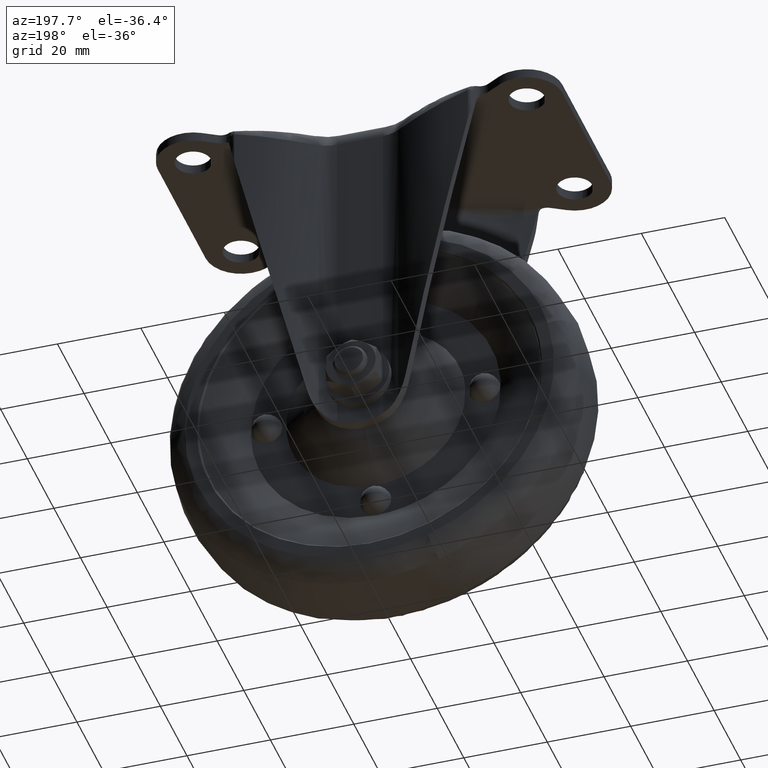
[diagram: clean part render]
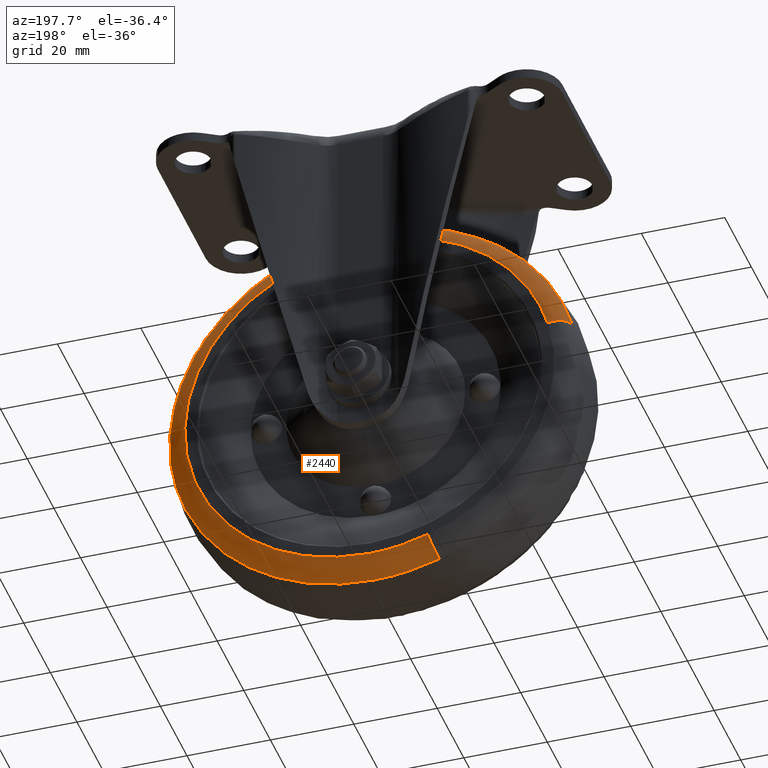
[diagram: same view with one face highlighted and labeled with its STEP entity id]
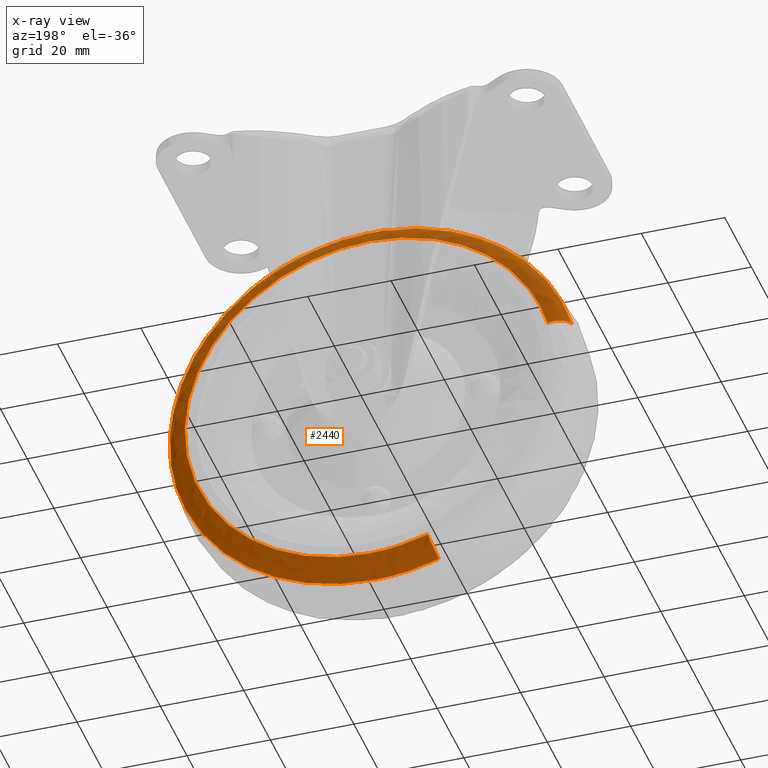
[diagram: x-ray of the same camera — body ghosted, the highlighted face saturated]
A machine part, auxiliary view. The second image highlights one B-rep face of the part: STEP entity #2440.
The next image is the same camera in x-ray: the body ghosted, the highlighted face saturated — about 0% of this face is hidden behind the body in this view.
In plain terms, the highlighted face is a freeform B-spline surface patch.
Its self-contained STEP definition (entity closure, byte-faithful):
#2264=CARTESIAN_POINT('',(-13.876293729737439,10.990696350129985,-114.716927893697330));
#2265=CARTESIAN_POINT('',(-12.682374328333411,10.990696350129982,-115.114061075357580));
#2266=CARTESIAN_POINT('',(-11.467696216568225,10.990696350129985,-115.442261297513370));
#2267=CARTESIAN_POINT('',(30.974565080945140,10.990696350129982,-126.909957514081570));
#2268=CARTESIAN_POINT('',(42.442261297513362,10.990696350129985,-84.467696216568228));
#2269=CARTESIAN_POINT('',(53.909957514081583,10.990696350129982,-42.025434919054874));
#2270=CARTESIAN_POINT('',(11.467696216568235,10.990696350129985,-30.557738702486649));
#2271=CARTESIAN_POINT('',(-30.974565080945123,10.990696350129982,-19.090042485918421));
#2272=CARTESIAN_POINT('',(-42.442261297513362,10.990696350129985,-61.532303783431779));
#2273=CARTESIAN_POINT('',(-15.272216723460616,11.260882218202976,-118.913554169307700));
#2274=CARTESIAN_POINT('',(-13.958191796940724,11.260882218202976,-119.350638028767610));
#2275=CARTESIAN_POINT('',(-12.621319881901433,11.260882218202980,-119.711854432735040));
#2276=CARTESIAN_POINT('',(34.090534550833588,11.260882218202978,-132.333174314636470));
#2277=CARTESIAN_POINT('',(46.711854432735031,11.260882218202980,-85.621319881901428));
#2278=CARTESIAN_POINT('',(59.333174314636452,11.260882218202978,-38.909465449166426));
#2279=CARTESIAN_POINT('',(12.621319881901439,11.260882218202980,-26.288145567264991));
#2280=CARTESIAN_POINT('',(-34.090534550833588,11.260882218202978,-13.666825685363547));
#2281=CARTESIAN_POINT('',(-46.711854432735009,11.260882218202980,-60.378680118098572));
#2282=CARTESIAN_POINT('',(-15.524722400422903,6.902757344517541,-119.672673378207950));
#2283=CARTESIAN_POINT('',(-14.188971829248780,6.902757344517540,-120.116983834685190));
#2284=CARTESIAN_POINT('',(-12.829996525157902,6.902757344517538,-120.484172468765910));
#2285=CARTESIAN_POINT('',(34.654175943608017,6.902757344517540,-133.314168993923800));
#2286=CARTESIAN_POINT('',(47.484172468765919,6.902757344517538,-85.829996525157895));
#2287=CARTESIAN_POINT('',(60.314168993923815,6.902757344517540,-38.345824056391983));
#2288=CARTESIAN_POINT('',(12.829996525157902,6.902757344517538,-25.515827531234084));
#2289=CARTESIAN_POINT('',(-34.654175943608017,6.902757344517540,-12.685831006076183));
#2290=CARTESIAN_POINT('',(-47.484172468765919,6.902757344517538,-60.170003474842098));
#2298=(BOUNDED_SURFACE()B_SPLINE_SURFACE(2,2,((#2264,#2273,#2282),(#2265,#2274,#2283),(#2266,#2275,#2284),(#2267,#2276,#2285),(#2268,#2277,#2286),(#2269,#2278,#2287),(#2270,#2279,#2288),(#2271,#2280,#2289),(#2272,#2281,#2290)),.UNSPECIFIED.,.F.,.F.,.U.)B_SPLINE_SURFACE_WITH_KNOTS((3,2,2,2,3),(3,3),(0.0,3.259820769074377,84.755417716191516,166.251014663308610,247.746611610425790),(0.0,7.586699950940904),.UNSPECIFIED.)GEOMETRIC_REPRESENTATION_ITEM()RATIONAL_B_SPLINE_SURFACE(((0.894125677647887,0.670287674355030,0.897103665306754),(0.903984748146526,0.677678596684002,0.906995572565378),(0.914701128234617,0.685712207244932,0.917747644780927),(0.646791370533683,0.484871751685287,0.648945583042576),(0.914701128234617,0.685712207244932,0.917747644780927),(0.646791370533683,0.484871751685287,0.648945583042576),(0.914701128234617,0.685712207244932,0.917747644780927),(0.646791370533683,0.484871751685287,0.648945583042576),(0.914701128234617,0.685712207244932,0.917747644780927)))REPRESENTATION_ITEM('')SURFACE());
#2299=CARTESIAN_POINT('',(-13.972526002667140,11.000000502495240,-115.006227576638910));
#2300=VERTEX_POINT('',#2299);
#2301=CARTESIAN_POINT('',(0.0,11.000000502495240,-117.269116074793700));
#2302=VERTEX_POINT('',#2301);
#2303=CARTESIAN_POINT('',(-13.972526002667138,11.000000502495240,-115.006227576638990));
#2304=CARTESIAN_POINT('',(-7.169503467468189,11.000000502495244,-117.269116074793700));
#2305=CARTESIAN_POINT('',(0.0,11.000000502495240,-117.269116074793700));
#2313=(BOUNDED_CURVE()B_SPLINE_CURVE(2,(#2303,#2304,#2305),.UNSPECIFIED.,.F.,.U.)B_SPLINE_CURVE_WITH_KNOTS((3,3),(0.946340696667623,1.0),.UNSPECIFIED.)CURVE()GEOMETRIC_REPRESENTATION_ITEM()RATIONAL_B_SPLINE_CURVE((0.901255104928769,0.937134215710770,1.0))REPRESENTATION_ITEM(''));
#2314=EDGE_CURVE('',#2300,#2302,#2313,.T.);
#2315=ORIENTED_EDGE('',*,*,#2314,.T.);
#2316=CARTESIAN_POINT('',(0.0,11.000000502495240,-28.730883925206250));
#2317=VERTEX_POINT('',#2316);
#2318=CARTESIAN_POINT('',(0.0,11.000000502495240,-117.269116074793700));
#2319=CARTESIAN_POINT('',(44.269116074793750,11.000000502495242,-117.269116074793740));
#2320=CARTESIAN_POINT('',(44.269116074793743,11.000000502495240,-73.0));
#2321=CARTESIAN_POINT('',(44.269116074793750,11.000000502495242,-28.730883925206246));
#2322=CARTESIAN_POINT('',(0.0,11.000000502495240,-28.730883925206250));
#2330=(BOUNDED_CURVE()B_SPLINE_CURVE(2,(#2318,#2319,#2320,#2321,#2322),.UNSPECIFIED.,.F.,.U.)B_SPLINE_CURVE_WITH_KNOTS((3,2,3),(0.0,0.250000000000000,0.500000000000000),.UNSPECIFIED.)CURVE()GEOMETRIC_REPRESENTATION_ITEM()RATIONAL_B_SPLINE_CURVE((1.0,0.707106781186548,1.0,0.707106781186548,1.0))REPRESENTATION_ITEM(''));
#2331=EDGE_CURVE('',#2302,#2317,#2330,.T.);
#2332=ORIENTED_EDGE('',*,*,#2331,.T.);
#2333=CARTESIAN_POINT('',(-42.736591828179542,11.000000502495240,-61.452777080198601));
#2334=VERTEX_POINT('',#2333);
#2335=CARTESIAN_POINT('',(0.0,11.000000502495240,-28.730883925206250));
#2336=CARTESIAN_POINT('',(-33.895292637910828,11.000000502495240,-28.730883925206250));
#2337=CARTESIAN_POINT('',(-42.736591828179549,11.000000502495245,-61.452777080198601));
#2345=(BOUNDED_CURVE()B_SPLINE_CURVE(2,(#2335,#2336,#2337),.UNSPECIFIED.,.F.,.U.)B_SPLINE_CURVE_WITH_KNOTS((3,3),(0.500000000000000,0.705522207669901),.UNSPECIFIED.)CURVE()GEOMETRIC_REPRESENTATION_ITEM()RATIONAL_B_SPLINE_CURVE((1.0,0.759215756231663,0.914323587274497))REPRESENTATION_ITEM(''));
#2346=EDGE_CURVE('',#2317,#2334,#2345,.T.);
#2347=ORIENTED_EDGE('',*,*,#2346,.T.);
#2348=CARTESIAN_POINT('',(-47.422423129892202,7.200003991381710,-60.186687851168323));
#2349=VERTEX_POINT('',#2348);
#2350=CARTESIAN_POINT('',(-42.736591828179542,11.000000502495240,-61.452777080198594));
#2351=CARTESIAN_POINT('',(-46.515485588908668,11.000000498879672,-60.431738041464492));
#2352=CARTESIAN_POINT('',(-47.422423129892195,7.200003991381710,-60.186687851168323));
#2360=(BOUNDED_CURVE()B_SPLINE_CURVE(2,(#2350,#2351,#2352),.UNSPECIFIED.,.F.,.U.)B_SPLINE_CURVE_WITH_KNOTS((3,3),(-1.686821146499185,-0.303121844745668),.UNSPECIFIED.)CURVE()GEOMETRIC_REPRESENTATION_ITEM()RATIONAL_B_SPLINE_CURVE((0.894853527352496,0.705698180846239,0.897623297889692))REPRESENTATION_ITEM(''));
#2361=EDGE_CURVE('',#2334,#2349,#2360,.T.);
#2362=ORIENTED_EDGE('',*,*,#2361,.T.);
#2363=CARTESIAN_POINT('',(0.0,7.200000602994289,-23.877019510247589));
#2364=VERTEX_POINT('',#2363);
#2365=CARTESIAN_POINT('',(0.0,7.200000602994289,-23.877019510247589));
#2366=CARTESIAN_POINT('',(-37.611725194755579,7.200000602994289,-23.877019510247603));
#2367=CARTESIAN_POINT('',(-47.422423129892195,7.200003991381710,-60.186687851168315));
#2375=(BOUNDED_CURVE()B_SPLINE_CURVE(2,(#2365,#2366,#2367),.UNSPECIFIED.,.F.,.U.)B_SPLINE_CURVE_WITH_KNOTS((3,3),(0.500000000000000,0.705522210431937),.UNSPECIFIED.)CURVE()GEOMETRIC_REPRESENTATION_ITEM()RATIONAL_B_SPLINE_CURVE((1.0,0.759215752995738,0.914323591443518))REPRESENTATION_ITEM(''));
#2376=EDGE_CURVE('',#2364,#2349,#2375,.T.);
#2377=ORIENTED_EDGE('',*,*,#2376,.F.);
#2378=CARTESIAN_POINT('',(48.794423881443379,7.200038790974614,-78.671902918995443));
#2379=VERTEX_POINT('',#2378);
#2380=CARTESIAN_POINT('',(48.794423881443379,7.200038790974614,-78.671902918995443));
#2381=CARTESIAN_POINT('',(49.122971353642072,7.200037806066093,-75.845466555165018));
#2382=CARTESIAN_POINT('',(49.122971625253591,7.200036700039339,-72.999998969583544));
#2383=CARTESIAN_POINT('',(49.122976314242749,7.200017606049178,-23.877019024883008));
#2384=CARTESIAN_POINT('',(0.0,7.200000602994289,-23.877019510247589));
#2392=(BOUNDED_CURVE()B_SPLINE_CURVE(2,(#2380,#2381,#2382,#2383,#2384),.UNSPECIFIED.,.F.,.U.)B_SPLINE_CURVE_WITH_KNOTS((3,2,3),(0.230000149329078,0.250000000000000,0.500000000000000),.UNSPECIFIED.)CURVE()GEOMETRIC_REPRESENTATION_ITEM()RATIONAL_B_SPLINE_CURVE((0.956886412106697,0.976568717444822,1.0,0.707106781186547,1.0))REPRESENTATION_ITEM(''));
#2393=EDGE_CURVE('',#2379,#2364,#2392,.T.);
#2394=ORIENTED_EDGE('',*,*,#2393,.F.);
#2395=CARTESIAN_POINT('',(0.0,7.200010116484373,-122.122978137769710));
#2396=VERTEX_POINT('',#2395);
#2397=CARTESIAN_POINT('',(0.0,7.200010116484373,-122.122978137769710));
#2398=CARTESIAN_POINT('',(43.743640633620011,7.200024453729495,-122.122978768709200));
#2399=CARTESIAN_POINT('',(48.794423881443379,7.200038790974614,-78.671902918995443));
#2407=(BOUNDED_CURVE()B_SPLINE_CURVE(2,(#2397,#2398,#2399),.UNSPECIFIED.,.F.,.U.)B_SPLINE_CURVE_WITH_KNOTS((3,3),(0.0,0.230000149329078),.UNSPECIFIED.)CURVE()GEOMETRIC_REPRESENTATION_ITEM()RATIONAL_B_SPLINE_CURVE((1.0,0.730538063741726,0.956886412106697))REPRESENTATION_ITEM(''));
#2408=EDGE_CURVE('',#2396,#2379,#2407,.T.);
#2409=ORIENTED_EDGE('',*,*,#2408,.F.);
#2410=CARTESIAN_POINT('',(-15.504502901210079,7.200006669620899,-119.611988376216400));
#2411=VERTEX_POINT('',#2410);
#2412=CARTESIAN_POINT('',(-15.504502901210074,7.200006669620900,-119.611988376216460));
#2413=CARTESIAN_POINT('',(-7.955581848036379,7.200008514626505,-122.122978485750660));
#2414=CARTESIAN_POINT('',(0.0,7.200010116484373,-122.122978137769710));
#2422=(BOUNDED_CURVE()B_SPLINE_CURVE(2,(#2412,#2413,#2414),.UNSPECIFIED.,.F.,.U.)B_SPLINE_CURVE_WITH_KNOTS((3,3),(0.946340812007468,1.0),.UNSPECIFIED.)CURVE()GEOMETRIC_REPRESENTATION_ITEM()RATIONAL_B_SPLINE_CURVE((0.901255259172084,0.937134350839804,1.0))REPRESENTATION_ITEM(''));
#2423=EDGE_CURVE('',#2411,#2396,#2422,.T.);
#2424=ORIENTED_EDGE('',*,*,#2423,.F.);
#2425=CARTESIAN_POINT('',(-13.972526002667145,11.000000502495240,-115.006227576638960));
#2426=CARTESIAN_POINT('',(-15.208000142512290,11.000000508042460,-118.720543729598190));
#2427=CARTESIAN_POINT('',(-15.504502901210076,7.200006669620900,-119.611988376216430));
#2435=(BOUNDED_CURVE()B_SPLINE_CURVE(2,(#2425,#2426,#2427),.UNSPECIFIED.,.F.,.U.)B_SPLINE_CURVE_WITH_KNOTS((3,3),(-1.686821147169568,-0.303122491366769),.UNSPECIFIED.)CURVE()GEOMETRIC_REPRESENTATION_ITEM()RATIONAL_B_SPLINE_CURVE((0.874724514028209,0.689824151703314,0.877431805272755))REPRESENTATION_ITEM(''));
#2436=EDGE_CURVE('',#2300,#2411,#2435,.T.);
#2437=ORIENTED_EDGE('',*,*,#2436,.F.);
#2438=EDGE_LOOP('',(#2315,#2332,#2347,#2362,#2377,#2394,#2409,#2424,#2437));
#2439=FACE_OUTER_BOUND('',#2438,.T.);
#2440=ADVANCED_FACE('',(#2439),#2298,.T.);